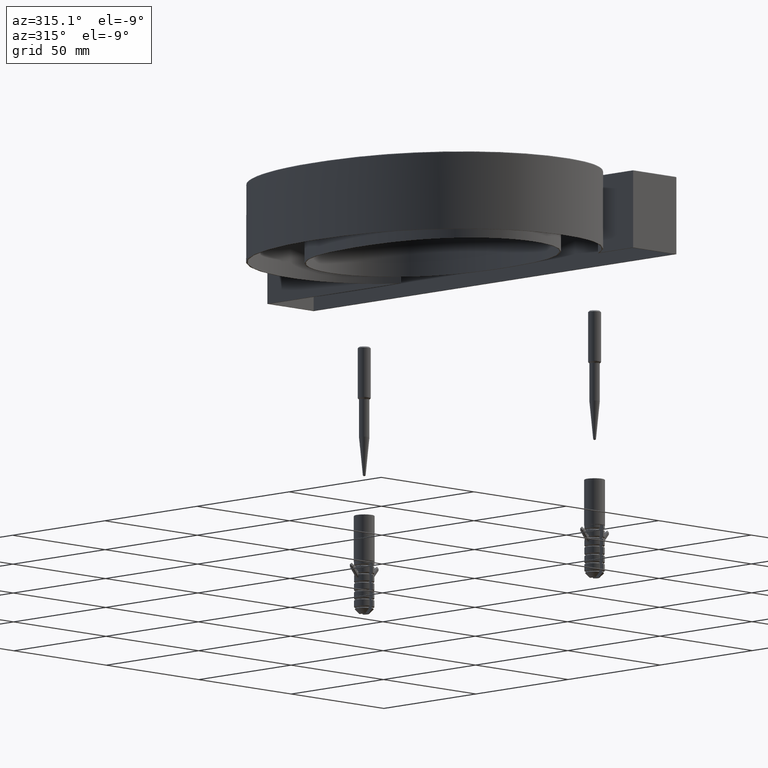
[diagram: clean part render]
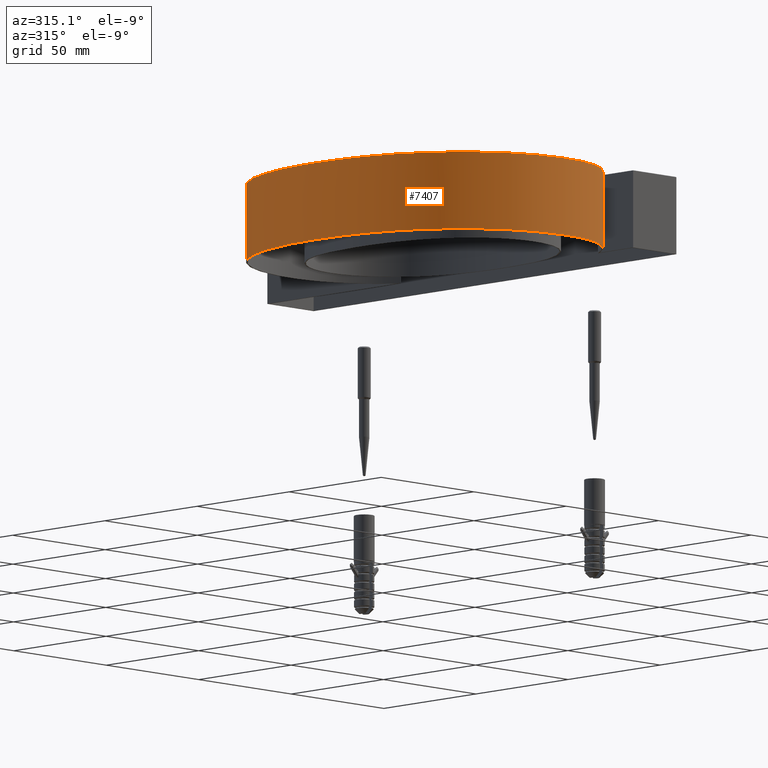
[diagram: same view with one face highlighted and labeled with its STEP entity id]
A machine part, auxiliary view. The second image highlights one B-rep face of the part: STEP entity #7407.
In plain terms, the highlighted face is a freeform B-spline surface patch.
Its self-contained STEP definition (entity closure, byte-faithful):
#586 = VERTEX_POINT ( 'NONE', #15990 ) ;
#655 = CARTESIAN_POINT ( 'NONE',  ( -14.96639762184251400, 127.2954863412121800, -28.00000000000000000 ) ) ;
#664 = CARTESIAN_POINT ( 'NONE',  ( -71.69601865056918700, 0.9744036956675975500, 1.749999999999999800 ) ) ;
#738 = CARTESIAN_POINT ( 'NONE',  ( -14.96639762184251400, 127.2954863412121800, 1.750000000000000400 ) ) ;
#768 = CARTESIAN_POINT ( 'NONE',  ( -101.6080172924334900, 119.8730866901480100, 1.750000000000000200 ) ) ;
#847 = CARTESIAN_POINT ( 'NONE',  ( -56.96586784675095300, -2.187716970588906100, 1.750000000000000200 ) ) ;
#874 = FACE_OUTER_BOUND ( 'NONE', #17962, .T. ) ;
#956 = CARTESIAN_POINT ( 'NONE',  ( -113.2418258117406100, 77.43726078419335600, 1.750000000000000700 ) ) ;
#1058 = CARTESIAN_POINT ( 'NONE',  ( -104.3489505851471600, 30.98331695129911300, 1.749999999999999800 ) ) ;
#1148 = CARTESIAN_POINT ( 'NONE',  ( -22.67847236838505900, 135.5080284038690200, 1.750000000000000200 ) ) ;
#1243 = CARTESIAN_POINT ( 'NONE',  ( -69.37463321550053800, 144.4484921796100400, 1.750000000000000200 ) ) ;
#1346 = CARTESIAN_POINT ( 'NONE',  ( -73.95837641240841300, 142.9503951457487000, 1.750000000000000200 ) ) ;
#1361 = VERTEX_POINT ( 'NONE', #18534 ) ;
#2800 = CARTESIAN_POINT ( 'NONE',  ( -101.9238327309839500, 121.1142797391724900, -27.99999999999999600 ) ) ;
#2829 = CARTESIAN_POINT ( 'NONE',  ( -21.54250829161467700, 8.985908815211658400, 1.750000000000000200 ) ) ;
#2900 = CARTESIAN_POINT ( 'NONE',  ( -19.05725211412875800, 132.6438408506735400, -27.99999999999999600 ) ) ;
#2922 = CARTESIAN_POINT ( 'NONE',  ( -42.67982845841045500, -1.509085531809347000, 1.750000000000000000 ) ) ;
#2997 = CARTESIAN_POINT ( 'NONE',  ( -113.4737660522001800, 63.97493796239719900, -27.99999999999999600 ) ) ;
#3026 = CARTESIAN_POINT ( 'NONE',  ( -110.7937243307886100, 96.17561388391490600, 1.750000000000000400 ) ) ;
#3101 = CARTESIAN_POINT ( 'NONE',  ( -33.12878453757383600, -1.448429899387175100, 1.750000000000000400 ) ) ;
#3132 = CARTESIAN_POINT ( 'NONE',  ( -38.05826588135497000, -0.3575082062432519700, 1.750000000000000200 ) ) ;
#3236 = CARTESIAN_POINT ( 'NONE',  ( -60.11841874692520100, -1.851677492735709800, 1.750000000000000200 ) ) ;
#3325 = CARTESIAN_POINT ( 'NONE',  ( -113.0630003167264900, 69.49413343771898600, 1.750000000000000200 ) ) ;
#3415 = CARTESIAN_POINT ( 'NONE',  ( -19.15259010473109700, 132.1925096692098400, 1.750000000000000000 ) ) ;
#3510 = CARTESIAN_POINT ( 'NONE',  ( -55.20952041983147800, 146.5649511632593400, 1.750000000000000200 ) ) ;
#3787 = CARTESIAN_POINT ( 'NONE',  ( -14.96639762184251400, 127.2954863412121800, 1.750000000000000000 ) ) ;
#4658 = ORIENTED_EDGE ( 'NONE', *, *, #21555, .F. ) ;
#4924 = CARTESIAN_POINT ( 'NONE',  ( -109.5971285387927600, 39.24555267256152300, 1.750000000000000400 ) ) ;
#5012 = CARTESIAN_POINT ( 'NONE',  ( -77.28228785703139200, 1.656568566051885400, -27.99999999999999600 ) ) ;
#5032 = CARTESIAN_POINT ( 'NONE',  ( -89.59196088612337400, 135.4618115973933900, -28.00000000000000000 ) ) ;
#5040 = CARTESIAN_POINT ( 'NONE',  ( -22.14808592455499800, 8.455291255670665900, 1.750000000000000200 ) ) ;
#5104 = CARTESIAN_POINT ( 'NONE',  ( -26.56412371920765700, 139.5331945094211200, 1.750000000000000400 ) ) ;
#5130 = CARTESIAN_POINT ( 'NONE',  ( -96.46664113544844100, 19.02073086169244600, 1.750000000000001600 ) ) ;
#5193 = EDGE_CURVE ( 'NONE', #1361, #25810, #12546, .T. ) ;
#5206 = CARTESIAN_POINT ( 'NONE',  ( -95.97707322076684000, 15.77975291955718400, 1.750000000000000400 ) ) ;
#5236 = CARTESIAN_POINT ( 'NONE',  ( -99.89294707538746800, 122.5790548550235600, 1.750000000000000400 ) ) ;
#5304 = CARTESIAN_POINT ( 'NONE',  ( -13.33725356724732300, 18.74677858773115300, 1.750000000000000400 ) ) ;
#5331 = CARTESIAN_POINT ( 'NONE',  ( -55.38024897001840700, -2.295511379479354500, 1.750000000000000200 ) ) ;
#5435 = CARTESIAN_POINT ( 'NONE',  ( -97.46051009167187800, 20.26385258822261900, 1.750000000000000400 ) ) ;
#5530 = CARTESIAN_POINT ( 'NONE',  ( -112.6948380079351200, 63.12129212705690400, 1.750000000000000700 ) ) ;
#5630 = CARTESIAN_POINT ( 'NONE',  ( -93.96374881727501800, 130.1117985196598600, 1.750000000000000000 ) ) ;
#5812 = CARTESIAN_POINT ( 'NONE',  ( -30.53960260695749100, 140.9736744852799600, 1.750000000000000200 ) ) ;
#6003 = CARTESIAN_POINT ( 'NONE',  ( -31.94582503957275300, 141.7144769404648100, 1.750000000000000700 ) ) ;
#6081 = VERTEX_POINT ( 'NONE', #20777 ) ;
#6918 = CARTESIAN_POINT ( 'NONE',  ( -23.99344953144677800, 6.922461838239680500, 1.750000000000000200 ) ) ;
#7170 = CARTESIAN_POINT ( 'NONE',  ( -77.28228785703139200, 1.656568566051885400, 1.750000000000000400 ) ) ;
#7197 = CARTESIAN_POINT ( 'NONE',  ( -13.76624718706807600, 18.06649305612470300, 1.749999999999999300 ) ) ;
#7276 = CARTESIAN_POINT ( 'NONE',  ( -56.27899567384226700, -3.161854293401309400, -27.99999999999999600 ) ) ;
#7291 = CARTESIAN_POINT ( 'NONE',  ( -19.05725211412875800, 132.6438408506735400, -28.00000000000000000 ) ) ;
#7369 = CARTESIAN_POINT ( 'NONE',  ( -73.07619492900475700, 144.4152655676331000, 1.750000000000000400 ) ) ;
#7398 = CARTESIAN_POINT ( 'NONE',  ( -109.9513949987817400, 45.86039540636825500, 1.750000000000000700 ) ) ;
#7407 = ADVANCED_FACE ( 'NONE', ( #874 ), #16711, .F. ) ;
#7460 = CARTESIAN_POINT ( 'NONE',  ( -113.4737660522001800, 63.97493796239719900, 1.750000000000000400 ) ) ;
#7489 = CARTESIAN_POINT ( 'NONE',  ( -96.08360379338128600, 127.7408589272884600, 1.750000000000000200 ) ) ;
#7596 = CARTESIAN_POINT ( 'NONE',  ( -82.31808168675759400, 6.281655852671571300, 1.750000000000000400 ) ) ;
#7698 = CARTESIAN_POINT ( 'NONE',  ( -75.42833589866806700, 2.402530852617991400, 1.750000000000000200 ) ) ;
#7792 = CARTESIAN_POINT ( 'NONE',  ( -112.2484020736847000, 58.36401185911167700, 1.750000000000000200 ) ) ;
#7886 = CARTESIAN_POINT ( 'NONE',  ( -37.10604727311730500, 143.8939846720109600, 1.749999999999999800 ) ) ;
#8082 = CARTESIAN_POINT ( 'NONE',  ( -15.94672728435742700, 128.5771624754176500, 1.749999999999999800 ) ) ;
#8275 = CARTESIAN_POINT ( 'NONE',  ( -52.79540927850511900, 146.5793643096268100, 1.750000000000000000 ) ) ;
#9153 = CARTESIAN_POINT ( 'NONE',  ( -15.11812565006507600, 16.08000148866536000, 1.749999999999999800 ) ) ;
#9447 = CARTESIAN_POINT ( 'NONE',  ( -17.06819106397549400, 13.55496392814212700, 1.749999999999999800 ) ) ;
#9545 = CARTESIAN_POINT ( 'NONE',  ( -14.43094875552912100, 17.06383301116001800, 1.749999999999999800 ) ) ;
#9619 = CARTESIAN_POINT ( 'NONE',  ( -73.07619492900475700, 144.4152655676331000, -27.99999999999999600 ) ) ;
#9635 = CARTESIAN_POINT ( 'NONE',  ( -95.97707322076684000, 15.77975291955718400, -28.00000000000000000 ) ) ;
#9646 = CARTESIAN_POINT ( 'NONE',  ( -110.6814065318699400, 48.96080051783892600, 1.750000000000000200 ) ) ;
#9757 = CARTESIAN_POINT ( 'NONE',  ( -50.57699807449150600, -2.355759067497148300, 1.750000000000000200 ) ) ;
#9855 = CARTESIAN_POINT ( 'NONE',  ( -78.26269641487498100, 3.814576988078416600, 1.749999999999999800 ) ) ;
#9948 = CARTESIAN_POINT ( 'NONE',  ( -41.12776860996256500, -1.188839887067451500, 1.750000000000000000 ) ) ;
#10044 = CARTESIAN_POINT ( 'NONE',  ( -109.5819152668914400, 100.7924225177840200, 1.749999999999999800 ) ) ;
#10232 = CARTESIAN_POINT ( 'NONE',  ( -86.65365359992740900, 136.3141436105795800, 1.750000000000000200 ) ) ;
#10516 = CARTESIAN_POINT ( 'NONE',  ( -60.00290928715233500, 146.3208973657319500, 1.750000000000000400 ) ) ;
#11714 = CARTESIAN_POINT ( 'NONE',  ( -18.11752192295708900, 12.35468782325915500, 1.750000000000000200 ) ) ;
#11821 = CARTESIAN_POINT ( 'NONE',  ( -20.36256075074740200, 10.07676185225354900, 1.750000000000000200 ) ) ;
#11889 = CARTESIAN_POINT ( 'NONE',  ( -89.59196088612337400, 135.4618115973933900, 1.750000000000000400 ) ) ;
#11903 = CARTESIAN_POINT ( 'NONE',  ( -73.07619492900475700, 144.4152655676331000, -28.00000000000000000 ) ) ;
#11914 = CARTESIAN_POINT ( 'NONE',  ( -32.07905703369568300, 1.940287425049207000, 1.749999999999999600 ) ) ;
#12003 = CARTESIAN_POINT ( 'NONE',  ( -111.8300241951757000, 55.21243735592949500, 1.750000000000000700 ) ) ;
#12072 = CARTESIAN_POINT ( 'NONE',  ( -55.10433691684298200, 147.4338742023184400, -27.99999999999999600 ) ) ;
#12102 = CARTESIAN_POINT ( 'NONE',  ( -47.39153482353641100, -2.163707848227494100, 1.750000000000000200 ) ) ;
#12197 = CARTESIAN_POINT ( 'NONE',  ( -61.68521643804873400, -1.622566552128774900, 1.750000000000000200 ) ) ;
#12296 = CARTESIAN_POINT ( 'NONE',  ( -50.38808032621864900, 146.5091914367310700, 1.750000000000000200 ) ) ;
#12393 = CARTESIAN_POINT ( 'NONE',  ( -53.60230797063287200, 146.5856907712258700, 1.749999999999999800 ) ) ;
#12399 = CARTESIAN_POINT ( 'NONE',  ( -13.33725356724732300, 18.74677858773115300, 2.000000000000000000 ) ) ;
#12546 = LINE ( 'NONE', #15094, #26273 ) ;
#12595 = CARTESIAN_POINT ( 'NONE',  ( -84.65795516708126900, 137.6581645848376600, 1.750000000000000000 ) ) ;
#12689 = CARTESIAN_POINT ( 'NONE',  ( -23.92475775096174200, 136.5398673062930500, 1.750000000000000000 ) ) ;
#13983 = CARTESIAN_POINT ( 'NONE',  ( -14.96639762184251400, 127.2954863412121800, -27.99999999999999600 ) ) ;
#14001 = CARTESIAN_POINT ( 'NONE',  ( -108.9686811288889300, 104.8050124456997300, -28.00000000000000000 ) ) ;
#14091 = CARTESIAN_POINT ( 'NONE',  ( -55.10433691684298200, 147.4338742023184400, 1.750000000000000400 ) ) ;
#14124 = CARTESIAN_POINT ( 'NONE',  ( -68.64872949635164900, -0.03029421620618417600, 1.749999999999999800 ) ) ;
#14183 = CARTESIAN_POINT ( 'NONE',  ( -19.05725211412875800, 132.6438408506735400, 1.750000000000000400 ) ) ;
#14206 = CARTESIAN_POINT ( 'NONE',  ( -108.0932792146770100, 39.72656338071058000, 1.750000000000000200 ) ) ;
#14288 = CARTESIAN_POINT ( 'NONE',  ( -113.1092409157124100, 85.89612510148599300, 1.750000000000000400 ) ) ;
#14294 = ORIENTED_EDGE ( 'NONE', *, *, #17844, .F. ) ;
#14316 = CARTESIAN_POINT ( 'NONE',  ( -83.63695214264920700, 7.162596627821890200, 1.750000000000000200 ) ) ;
#14390 = CARTESIAN_POINT ( 'NONE',  ( -18.71808874203534100, 10.04483172089008600, 1.750000000000000400 ) ) ;
#14405 = CARTESIAN_POINT ( 'NONE',  ( -26.56412371920765700, 139.5331945094211200, -28.00000000000000000 ) ) ;
#14415 = CARTESIAN_POINT ( 'NONE',  ( -64.79863154612476700, -1.034267803156360600, 1.750000000000000200 ) ) ;
#14503 = CARTESIAN_POINT ( 'NONE',  ( -93.35598899071389700, 15.41004112492878900, 1.750000000000001300 ) ) ;
#14583 = CARTESIAN_POINT ( 'NONE',  ( -34.85450183604261600, 143.0273691709392700, 1.749999999999999300 ) ) ;
#14681 = CARTESIAN_POINT ( 'NONE',  ( -34.11931096489368500, 142.7132096135355300, 1.750000000000000000 ) ) ;
#14862 = CARTESIAN_POINT ( 'NONE',  ( -63.15647376911985600, 145.8876607133370000, 1.750000000000000700 ) ) ;
#15094 = CARTESIAN_POINT ( 'NONE',  ( -14.96639762184251400, 127.2954863412121800, 2.000000000000000000 ) ) ;
#15990 = CARTESIAN_POINT ( 'NONE',  ( -13.33725356724732300, 18.74677858773115300, -28.00000000000000000 ) ) ;
#16061 = CARTESIAN_POINT ( 'NONE',  ( -13.44203980420509100, 18.57731711255809500, 1.750000000000000000 ) ) ;
#16222 = CARTESIAN_POINT ( 'NONE',  ( -40.32469658577294100, 145.4836319598158800, 1.750000000000000400 ) ) ;
#16238 = CARTESIAN_POINT ( 'NONE',  ( -56.27899567384226700, -3.161854293401309400, -28.00000000000000000 ) ) ;
#16249 = CARTESIAN_POINT ( 'NONE',  ( -13.33725356724732300, 18.74677858773115300, 1.750000000000000000 ) ) ;
#16348 = CARTESIAN_POINT ( 'NONE',  ( -69.41380795954502500, 0.2023497366625039400, 1.749999999999999800 ) ) ;
#16421 = CARTESIAN_POINT ( 'NONE',  ( -113.1092409157124100, 85.89612510148599300, -27.99999999999999600 ) ) ;
#16437 = CARTESIAN_POINT ( 'NONE',  ( -33.12878453757383600, -1.448429899387175100, -28.00000000000000000 ) ) ;
#16448 = CARTESIAN_POINT ( 'NONE',  ( -29.26614738962913300, 3.408919948872556600, 1.750000000000000400 ) ) ;
#16520 = CARTESIAN_POINT ( 'NONE',  ( -95.97707322076684000, 15.77975291955718400, -27.99999999999999600 ) ) ;
#16549 = CARTESIAN_POINT ( 'NONE',  ( -102.8411797134685900, 28.19301458230996400, 1.750000000000000400 ) ) ;
#16638 = CARTESIAN_POINT ( 'NONE',  ( -112.9110728692139500, 83.73821852811990100, 1.750000000000000200 ) ) ;
#16711 = B_SPLINE_SURFACE_WITH_KNOTS ( 'NONE', 3, 1, ( 
 ( #738, #13983 ),
 ( #14183, #2900 ),
 ( #5104, #27722 ),
 ( #16222, #18593 ),
 ( #14091, #12072 ),
 ( #7369, #9619 ),
 ( #11889, #25448 ),
 ( #23108, #2800 ),
 ( #18493, #27632 ),
 ( #14288, #16421 ),
 ( #7460, #2997 ),
 ( #4924, #18682 ),
 ( #5206, #16520 ),
 ( #7170, #5012 ),
 ( #20735, #7276 ),
 ( #3101, #18780 ),
 ( #14390, #27822 ),
 ( #5304, #21033 ) ),
 .UNSPECIFIED., .F., .F., .F.,
 ( 4, 1, 1, 1, 1, 1, 1, 1, 1, 1, 1, 1, 1, 1, 1, 4 ),
 ( 2, 2 ),
 ( 0.0000000000000000000, 0.06641115105234725300, 0.09783114217981787900, 0.1463868335162947500, 0.2110102488122436400, 0.2742509958764539100, 0.3271384479868002500, 0.3943099139987687500, 0.4469877323316900900, 0.5169048825006644600, 0.6093211109342546700, 0.6895625473627824400, 0.7786639254348051200, 0.8304315954565668600, 0.8995419785145777300, 1.000000000000000000 ),
 ( 0.0000000000000000000, 1.000000000000000000 ),
 .UNSPECIFIED. ) ;
#16734 = CARTESIAN_POINT ( 'NONE',  ( -112.9976882236271400, 67.90216895691801800, 1.750000000000000200 ) ) ;
#16932 = CARTESIAN_POINT ( 'NONE',  ( -56.01053502111241800, 146.5378991252882800, 1.749999999999999800 ) ) ;
#17018 = CARTESIAN_POINT ( 'NONE',  ( -71.67996572325917300, 143.7383701612070600, 1.750000000000000000 ) ) ;
#17844 = EDGE_CURVE ( 'NONE', #586, #25810, #23367, .T. ) ;
#17962 = EDGE_LOOP ( 'NONE', ( #4658, #25618, #22406, #14294 ) ) ;
#18493 = CARTESIAN_POINT ( 'NONE',  ( -108.9686811288889300, 104.8050124456997300, 1.750000000000000400 ) ) ;
#18506 = CARTESIAN_POINT ( 'NONE',  ( -101.9238327309839500, 121.1142797391724900, -28.00000000000000000 ) ) ;
#18534 = CARTESIAN_POINT ( 'NONE',  ( -14.96639762184251400, 127.2954863412121800, 1.750000000000000000 ) ) ;
#18587 = B_SPLINE_CURVE_WITH_KNOTS ( 'NONE', 3,
 ( #16249, #16061, #22825, #7197, #25075, #9545, #9153, #22728, #9447, #11714, #25283, #11821, #2829, #5040, #6918, #24878, #27166, #16448, #11914, #23323, #23230, #18702, #3132, #27557, #9948, #2922, #19002, #12102, #9757, #18806, #5331, #847, #3236, #12197, #14415, #25678, #14124, #16348, #25478, #664, #7698, #9855, #7596, #14316, #23136, #27943, #18617, #25580, #21062, #14503, #5130, #5435, #27842, #20849, #16549, #1058, #23526, #14206, #7398, #9646, #12003, #7792, #5530, #21250, #16734, #3325, #956, #16638, #27752, #3026, #10044, #25377, #18902, #25768, #27660, #21154, #23424, #768, #5236, #20957, #7489, #5630, #19082, #21351, #21734, #10232, #21536, #12595, #28318, #23895, #19369, #1346, #23982, #17018, #1243, #23704, #14862, #10516, #16932, #3510, #12393, #8275, #12296, #19278, #19457, #28041, #7886, #28136, #14583, #14681, #6003, #5812, #28419, #23799, #12689, #1148, #19182, #3415, #25980, #8082, #3787 ),
 .UNSPECIFIED., .F., .F.,
 ( 4, 2, 1, 2, 2, 2, 2, 2, 2, 2, 2, 2, 2, 2, 2, 2, 2, 2, 2, 2, 2, 2, 2, 2, 2, 2, 2, 2, 2, 2, 2, 2, 2, 2, 2, 2, 2, 2, 2, 2, 2, 2, 2, 2, 2, 2, 2, 2, 2, 2, 2, 2, 2, 2, 2, 2, 2, 2, 2, 2, 4 ),
 ( -6.000000000537643000E-008, 0.0005976657926610013300, 0.001195391585322008200, 0.002390843170644009900, 0.004781746341288019500, 0.009563552682576031600, 0.01195445585322004400, 0.01434535902386405500, 0.01912716536515206600, 0.02390897170644007800, 0.02869077804772808900, 0.03108168121837209500, 0.03347258438901610400, 0.03825439073030411500, 0.04303619707159212600, 0.04781800341288013800, 0.05259980975416814900, 0.05738161609545616000, 0.06216342243674417200, 0.06455432560738819100, 0.06694522877803221700, 0.07650884146060825400, 0.08129064780189626500, 0.08368155097254025000, 0.08607245414318424900, 0.09563606682576027100, 0.1004178731670483000, 0.1051996795083363200, 0.1147632921909123700, 0.1243269048734884100, 0.1338905175560644600, 0.1434541302386405100, 0.1482359365799285300, 0.1530177429212165300, 0.1721449682863686300, 0.1817085809689446800, 0.1864903873102326800, 0.1912721936515207100, 0.2008358063340967300, 0.2056176126753847300, 0.2103994190166727500, 0.2199630316992487700, 0.2247448380405368000, 0.2271357412111808500, 0.2295266443818248800, 0.2390902570644009900, 0.2414811602350450400, 0.2438720634056890900, 0.2486538697469771700, 0.2582174824295533900, 0.2606083856001974500, 0.2629992887708415000, 0.2677810951121296600, 0.2773447077947059400, 0.2797356109653499900, 0.2821265141359940400, 0.2869083204772821500, 0.2916901268185701500, 0.2964719331598582600, 0.3012537395011462600, 0.3060355458424343100 ),
 .UNSPECIFIED. ) ;
#18593 = CARTESIAN_POINT ( 'NONE',  ( -40.32469658577294100, 145.4836319598158800, -27.99999999999999600 ) ) ;
#18617 = CARTESIAN_POINT ( 'NONE',  ( -87.45849999956514900, 10.04573069357242500, 1.749999999999999800 ) ) ;
#18682 = CARTESIAN_POINT ( 'NONE',  ( -109.5971285387927600, 39.24555267256152300, -27.99999999999999600 ) ) ;
#18696 = CARTESIAN_POINT ( 'NONE',  ( -113.1092409157124100, 85.89612510148599300, -28.00000000000000000 ) ) ;
#18702 = CARTESIAN_POINT ( 'NONE',  ( -36.53750102052475800, 0.1352640339601358700, 1.750000000000000200 ) ) ;
#18780 = CARTESIAN_POINT ( 'NONE',  ( -33.12878453757383600, -1.448429899387175100, -27.99999999999999600 ) ) ;
#18806 = CARTESIAN_POINT ( 'NONE',  ( -52.18867472730671900, -2.380016407220374200, 1.750000000000000200 ) ) ;
#18902 = CARTESIAN_POINT ( 'NONE',  ( -108.1671008073750400, 105.3861962280947300, 1.750000000000000400 ) ) ;
#19002 = CARTESIAN_POINT ( 'NONE',  ( -45.81170768038269600, -1.996540929041055600, 1.750000000000000000 ) ) ;
#19082 = CARTESIAN_POINT ( 'NONE',  ( -90.45755331479958300, 133.3556913777492800, 1.750000000000000400 ) ) ;
#19169 = VECTOR ( 'NONE', #21162, 1000.000000000000000 ) ;
#19182 = CARTESIAN_POINT ( 'NONE',  ( -20.29424401727339600, 133.3356800704311800, 1.749999999999999800 ) ) ;
#19278 = CARTESIAN_POINT ( 'NONE',  ( -48.79423227229060700, 146.3943221759722300, 1.750000000000000400 ) ) ;
#19369 = CARTESIAN_POINT ( 'NONE',  ( -74.70733328420824600, 142.6681760600185400, 1.749999999999999800 ) ) ;
#19457 = CARTESIAN_POINT ( 'NONE',  ( -44.04803405929450800, 145.8316830002946700, 1.750000000000000400 ) ) ;
#19842 = LINE ( 'NONE', #12399, #19169 ) ;
#20735 = CARTESIAN_POINT ( 'NONE',  ( -56.27899567384226700, -3.161854293401309400, 1.750000000000000400 ) ) ;
#20753 = CARTESIAN_POINT ( 'NONE',  ( -55.10433691684298200, 147.4338742023184400, -28.00000000000000000 ) ) ;
#20777 = CARTESIAN_POINT ( 'NONE',  ( -13.33725356724732300, 18.74677858773115300, 1.750000000000000000 ) ) ;
#20849 = CARTESIAN_POINT ( 'NONE',  ( -100.2730969534689200, 24.15402696370921000, 1.750000000000000400 ) ) ;
#20957 = CARTESIAN_POINT ( 'NONE',  ( -98.97487584030905300, 123.9082219864796700, 1.750000000000000400 ) ) ;
#20970 = CARTESIAN_POINT ( 'NONE',  ( -14.96639762184251400, 127.2954863412121800, -28.00000000000000000 ) ) ;
#21033 = CARTESIAN_POINT ( 'NONE',  ( -13.33725356724732300, 18.74677858773115300, -27.99999999999999600 ) ) ;
#21062 = CARTESIAN_POINT ( 'NONE',  ( -91.11172334511860500, 13.15971132370663300, 1.749999999999999600 ) ) ;
#21154 = CARTESIAN_POINT ( 'NONE',  ( -104.6558749140928900, 114.2796944700579300, 1.750000000000000000 ) ) ;
#21162 = DIRECTION ( 'NONE',  ( -0.0000000000000000000, -0.0000000000000000000, -1.000000000000000000 ) ) ;
#21250 = CARTESIAN_POINT ( 'NONE',  ( -112.8133667172684900, 64.71217183253526200, 1.750000000000000200 ) ) ;
#21351 = CARTESIAN_POINT ( 'NONE',  ( -89.23314156016651600, 134.3836795593117600, 1.750000000000000400 ) ) ;
#21536 = CARTESIAN_POINT ( 'NONE',  ( -85.32892749969025200, 137.2215228242257600, 1.750000000000000000 ) ) ;
#21555 = EDGE_CURVE ( 'NONE', #6081, #586, #19842, .T. ) ;
#21734 = CARTESIAN_POINT ( 'NONE',  ( -87.30917287277438300, 135.8420296062994300, 1.749999999999999800 ) ) ;
#21865 = DIRECTION ( 'NONE',  ( -0.0000000000000000000, -0.0000000000000000000, -1.000000000000000000 ) ) ;
#22406 = ORIENTED_EDGE ( 'NONE', *, *, #5193, .T. ) ;
#22728 = CARTESIAN_POINT ( 'NONE',  ( -15.59322655796404400, 15.43834115951041700, 1.750000000000000000 ) ) ;
#22825 = CARTESIAN_POINT ( 'NONE',  ( -13.55010665364033300, 18.40525920829502500, 1.749999999999999800 ) ) ;
#22921 = CARTESIAN_POINT ( 'NONE',  ( -13.33725356724732300, 18.74677858773115300, -28.00000000000000000 ) ) ;
#23108 = CARTESIAN_POINT ( 'NONE',  ( -101.9238327309839500, 121.1142797391724900, 1.750000000000000400 ) ) ;
#23136 = CARTESIAN_POINT ( 'NONE',  ( -85.56757440922896800, 8.568848506742522600, 1.750000000000000000 ) ) ;
#23218 = CARTESIAN_POINT ( 'NONE',  ( -113.4737660522001800, 63.97493796239719900, -28.00000000000000000 ) ) ;
#23230 = CARTESIAN_POINT ( 'NONE',  ( -35.77942140355877100, 0.4051467057179798900, 1.750000000000000000 ) ) ;
#23323 = CARTESIAN_POINT ( 'NONE',  ( -33.53023779654295600, 1.278961703300586200, 1.750000000000000000 ) ) ;
#23367 = B_SPLINE_CURVE_WITH_KNOTS ( 'NONE', 3,
 ( #22921, #25370, #16437, #16238, #27452, #9635, #25570, #23218, #18696, #14001, #18506, #5032, #11903, #20753, #27743, #14405, #7291, #655 ),
 .UNSPECIFIED., .F., .F.,
 ( 4, 1, 1, 1, 1, 1, 1, 1, 1, 1, 1, 1, 1, 1, 1, 4 ),
 ( 0.0000000000000000000, 0.1004580214854222700, 0.1695684045434331400, 0.2213360745651948800, 0.3104374526372175600, 0.3906788890657453300, 0.4830951174993355400, 0.5530122676683099100, 0.6056900860012313100, 0.6728615520131997500, 0.7257490041235461500, 0.7889897511877563800, 0.8536131664837052200, 0.9021688578201820800, 0.9335888489476527100, 1.000000000000000000 ),
 .UNSPECIFIED. ) ;
#23424 = CARTESIAN_POINT ( 'NONE',  ( -102.4083236912323700, 118.4929381992193700, 1.749999999999999800 ) ) ;
#23526 = CARTESIAN_POINT ( 'NONE',  ( -106.9769505710318800, 36.74915917564542400, 1.750000000000000200 ) ) ;
#23704 = CARTESIAN_POINT ( 'NONE',  ( -67.82754663712066200, 144.8562609667845000, 1.750000000000000000 ) ) ;
#23799 = CARTESIAN_POINT ( 'NONE',  ( -26.48939491640819800, 138.4559257352693700, 1.750000000000000000 ) ) ;
#23895 = CARTESIAN_POINT ( 'NONE',  ( -78.41464344573850600, 141.1828753353916300, 1.749999999999999600 ) ) ;
#23982 = CARTESIAN_POINT ( 'NONE',  ( -72.44551737761260300, 143.4852390942087400, 1.749999999999999800 ) ) ;
#24878 = CARTESIAN_POINT ( 'NONE',  ( -25.26810011250755400, 5.973047524296546800, 1.750000000000000000 ) ) ;
#25075 = CARTESIAN_POINT ( 'NONE',  ( -14.09373388390492300, 17.56108818380553400, 1.749999999999999300 ) ) ;
#25283 = CARTESIAN_POINT ( 'NONE',  ( -19.78907030931159700, 10.63599714620147600, 1.750000000000000200 ) ) ;
#25370 = CARTESIAN_POINT ( 'NONE',  ( -18.71808874203534100, 10.04483172089008600, -28.00000000000000000 ) ) ;
#25377 = CARTESIAN_POINT ( 'NONE',  ( -109.1378256499669000, 102.3269141075596600, 1.750000000000000400 ) ) ;
#25448 = CARTESIAN_POINT ( 'NONE',  ( -89.59196088612337400, 135.4618115973933900, -27.99999999999999600 ) ) ;
#25478 = CARTESIAN_POINT ( 'NONE',  ( -70.93818737464133100, 0.7048779973001140200, 1.749999999999999800 ) ) ;
#25570 = CARTESIAN_POINT ( 'NONE',  ( -109.5971285387927600, 39.24555267256152300, -28.00000000000000000 ) ) ;
#25580 = CARTESIAN_POINT ( 'NONE',  ( -88.07809404429220000, 10.55675078319297800, 1.750000000000000200 ) ) ;
#25618 = ORIENTED_EDGE ( 'NONE', *, *, #26740, .T. ) ;
#25678 = CARTESIAN_POINT ( 'NONE',  ( -66.34525280515147500, -0.6751047598153239200, 1.750000000000000000 ) ) ;
#25768 = CARTESIAN_POINT ( 'NONE',  ( -107.6440884977386900, 106.8979662416194300, 1.750000000000000400 ) ) ;
#25810 = VERTEX_POINT ( 'NONE', #20970 ) ;
#25980 = CARTESIAN_POINT ( 'NONE',  ( -16.97930512517119100, 129.8135324175301000, 1.749999999999999800 ) ) ;
#26273 = VECTOR ( 'NONE', #21865, 1000.000000000000000 ) ;
#26740 = EDGE_CURVE ( 'NONE', #6081, #1361, #18587, .T. ) ;
#27166 = CARTESIAN_POINT ( 'NONE',  ( -27.90444815597151500, 4.216275134312797800, 1.750000000000000000 ) ) ;
#27452 = CARTESIAN_POINT ( 'NONE',  ( -77.28228785703139200, 1.656568566051885400, -28.00000000000000000 ) ) ;
#27557 = CARTESIAN_POINT ( 'NONE',  ( -38.82275098862914600, -0.5812766190167155700, 1.750000000000000000 ) ) ;
#27632 = CARTESIAN_POINT ( 'NONE',  ( -108.9686811288889300, 104.8050124456997300, -27.99999999999999600 ) ) ;
#27660 = CARTESIAN_POINT ( 'NONE',  ( -105.9504184304310000, 111.3741174177132100, 1.749999999999999800 ) ) ;
#27722 = CARTESIAN_POINT ( 'NONE',  ( -26.56412371920765700, 139.5331945094211200, -27.99999999999999600 ) ) ;
#27743 = CARTESIAN_POINT ( 'NONE',  ( -40.32469658577294100, 145.4836319598158800, -28.00000000000000000 ) ) ;
#27752 = CARTESIAN_POINT ( 'NONE',  ( -111.4411500009096000, 93.07960985349510000, 1.750000000000000400 ) ) ;
#27822 = CARTESIAN_POINT ( 'NONE',  ( -18.71808874203534100, 10.04483172089008600, -27.99999999999999600 ) ) ;
#27842 = CARTESIAN_POINT ( 'NONE',  ( -99.36277953964781800, 22.82869642231337800, 1.750000000000000900 ) ) ;
#27943 = CARTESIAN_POINT ( 'NONE',  ( -86.20315343231472100, 9.051765044833498300, 1.750000000000000700 ) ) ;
#28041 = CARTESIAN_POINT ( 'NONE',  ( -40.93058759258368400, 145.1686097496216000, 1.749999999999999800 ) ) ;
#28136 = CARTESIAN_POINT ( 'NONE',  ( -36.34673007742503600, 143.6173872627970000, 1.750000000000000200 ) ) ;
#28318 = CARTESIAN_POINT ( 'NONE',  ( -81.26190607934692900, 139.7598152693514900, 1.750000000000000400 ) ) ;
#28419 = CARTESIAN_POINT ( 'NONE',  ( -27.81158093840279100, 139.3440598283213200, 1.750000000000000400 ) ) ;